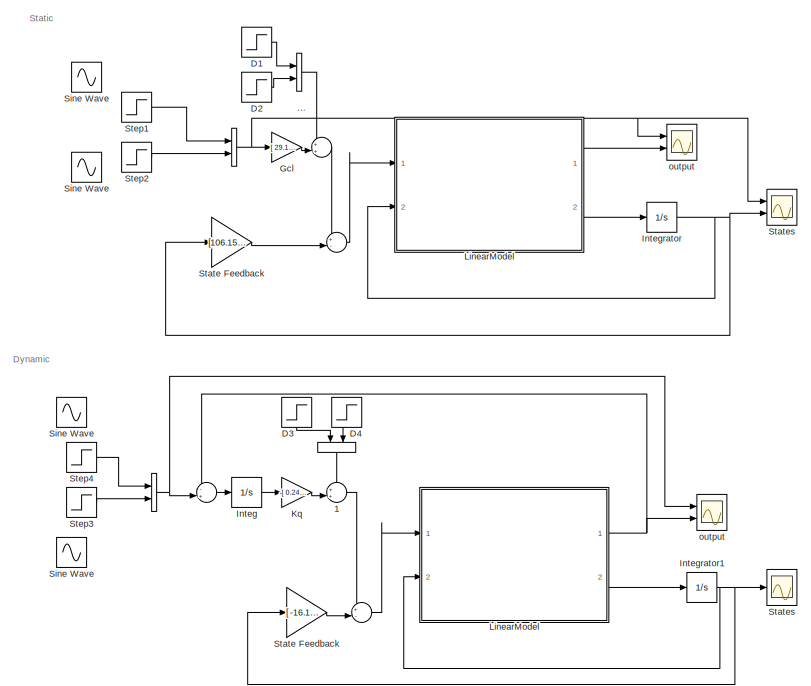
[diagram: root canvas - part 1/2, left side, full height]
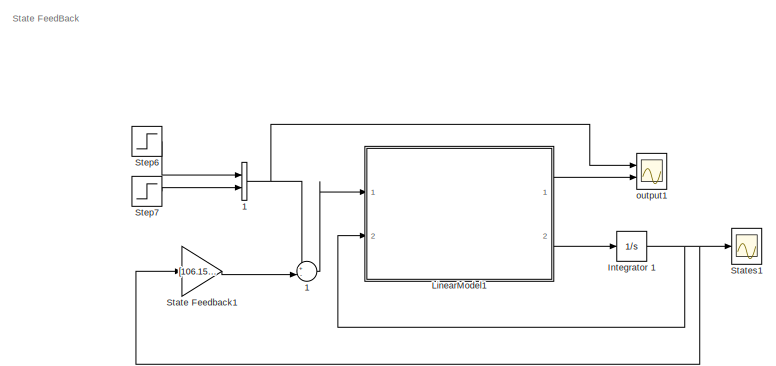
[diagram: root canvas - part 2/2, middle right region]
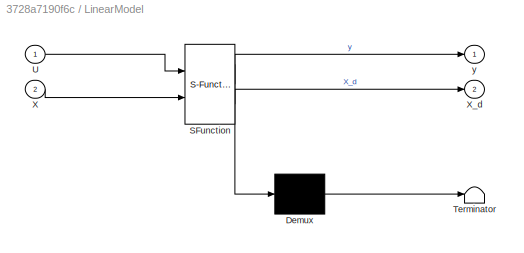
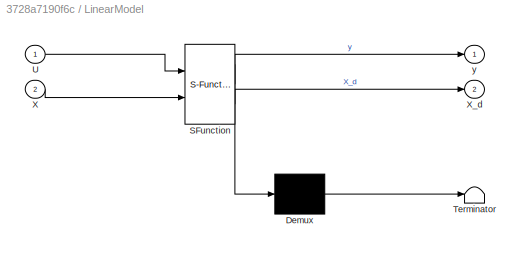
MODEL slx_3728a7190f6c
KIND model
CONFIG AbsTol = auto
CONFIG EnableMultiTasking = off
CONFIG FixedStep = auto
CONFIG MaxStep = auto
CONFIG MinStep = auto
CONFIG RelTol = 1e-3
CONFIG SampleTimeConstraint = Unconstrained
CONFIG Solver = VariableStepAuto
CONFIG SolverName = VariableStepAuto
CONFIG StartTime = 0.0
CONFIG StopTime = 500
BLOCK [Sum]  
  Inputs = +-|
  Ports = [2, 1]
BLOCK [Concatenate]    
  Ports = [2, 1]
BLOCK [Sum]      
  Inputs = ++|
  Ports = [2, 1]
BLOCK [Concatenate]        
  Ports = [2, 1]
BLOCK [Sum]         
  Inputs = -+|
  Ports = [2, 1]
BLOCK [Sum]          
  Inputs = +-|
  Ports = [2, 1]
BLOCK [Concatenate]                                   
  NameLocation = left
  Ports = [2, 1]
BLOCK [Concatenate]                                                                    
  Ports = [2, 1]
BLOCK [Sum]                   1
  Inputs = ++|
  Ports = [2, 1]
BLOCK [Concatenate]    1
  Ports = [2, 1]
BLOCK [Sum]  1
  Inputs = +-|
  Ports = [2, 1]
BLOCK [Step] D1
  After = 4
  SampleTime = 0
  Time = 250
BLOCK [Step] D2
  After = 4
  SampleTime = 0
  Time = 250
BLOCK [Step] D3
  After = 5
  NameLocation = left
  SampleTime = 0
  Time = 250
BLOCK [Step] D4
  After = 5
  NameLocation = left
  SampleTime = 0
  Time = 250
BLOCK [Gain] Gcl
  Gain = [  29.1,  231.0; 363.0, -162.0]
  Multiplication = Matrix(K*u)
BLOCK [Integrator] Integ
  Ports = [1, 1]
BLOCK [Integrator] Integrator  
  InitialCondition = [0;0;0;0;0;0]
  Ports = [1, 1]
BLOCK [Integrator] Integrator  1
  InitialCondition = [0;0;0;0;0;0]
  Ports = [1, 1]
BLOCK [Integrator] Integrator1
  InitialCondition = [0;0;0;0;0;0]
  Ports = [1, 1]
BLOCK [Gain] Kq
  Gain = -[ 0.248, -0.644; -1.44,  0.283]
  Multiplication = Matrix(K*u)
BLOCK [SubSystem] LinearModel
  ErrorFcn = Stateflow.Translate.translate
  PermitHierarchicalResolution = ExplicitOnly
  Ports = [2, 2]
  RequestExecContextInheritance = off
  SFBlockType = MATLAB Function
  TreatAsAtomicUnit = on
BLOCK [SubSystem] LinearModel 
  ErrorFcn = Stateflow.Translate.translate
  PermitHierarchicalResolution = ExplicitOnly
  Ports = [2, 2]
  RequestExecContextInheritance = off
  SFBlockType = MATLAB Function
  TreatAsAtomicUnit = on
BLOCK [Demux] LinearModel / Demux 
  Outputs = 1
  Ports = [1, 1]
BLOCK [S-Function] LinearModel / SFunction 
  EnableBusSupport = on
  FunctionName = sf_sfun
  PortCounts = [2 3]
  Ports = [2, 3]
  SFcnIsStateOwnerBlock = off
  SFunctionDeploymentMode = off
  Tag = Stateflow S-Function 1
BLOCK [Terminator] LinearModel / Terminator 
BLOCK [Inport] LinearModel /U
BLOCK [Inport] LinearModel /X
  Port = 2
BLOCK [Outport] LinearModel /X_d
  Port = 2
BLOCK [Outport] LinearModel /y
BLOCK [Demux] LinearModel/ Demux 
  Outputs = 1
  Ports = [1, 1]
BLOCK [S-Function] LinearModel/ SFunction 
  EnableBusSupport = on
  FunctionName = sf_sfun
  PortCounts = [2 3]
  Ports = [2, 3]
  SFcnIsStateOwnerBlock = off
  SFunctionDeploymentMode = off
  Tag = Stateflow S-Function 2
BLOCK [Terminator] LinearModel/ Terminator 
BLOCK [Inport] LinearModel/U
BLOCK [Inport] LinearModel/X
  Port = 2
BLOCK [Outport] LinearModel/X_d
  Port = 2
BLOCK [Outport] LinearModel/y
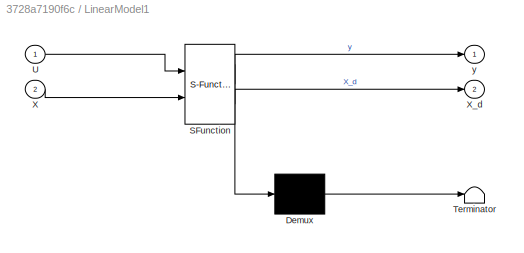
BLOCK [SubSystem] LinearModel1
  ErrorFcn = Stateflow.Translate.translate
  PermitHierarchicalResolution = ExplicitOnly
  Ports = [2, 2]
  RequestExecContextInheritance = off
  SFBlockType = MATLAB Function
  TreatAsAtomicUnit = on
BLOCK [Demux] LinearModel1/ Demux 
  Outputs = 1
  Ports = [1, 1]
BLOCK [S-Function] LinearModel1/ SFunction 
  EnableBusSupport = on
  FunctionName = sf_sfun
  PortCounts = [2 3]
  Ports = [2, 3]
  SFcnIsStateOwnerBlock = off
  SFunctionDeploymentMode = off
  Tag = Stateflow S-Function 3
BLOCK [Terminator] LinearModel1/ Terminator 
BLOCK [Inport] LinearModel1/U
BLOCK [Inport] LinearModel1/X
  Port = 2
BLOCK [Outport] LinearModel1/X_d
  Port = 2
BLOCK [Outport] LinearModel1/y
BLOCK [Sin] Sine Wave
  Ports = [0, 1]
  SampleTime = 0
BLOCK [Sin] Sine Wave 
  Ports = [0, 1]
  SampleTime = 0
BLOCK [Sin] Sine Wave  
  Ports = [0, 1]
  SampleTime = 0
BLOCK [Sin] Sine Wave   
  Ports = [0, 1]
  SampleTime = 0
BLOCK [Gain] State Feedback
  Gain = [106.15 -61.299 0.111 0.986 160.72 57.96; 169.55 189.92 1.35 0.106 -43.79 -62.97]
  Multiplication = Matrix(K*u)
BLOCK [Gain] State Feedback 
  Gain = [ -16.1, -14.8, -0.00412, -0.231,  27.5,  19.0;  55.9,  32.3,  -0.0575, 0.0176, -23.0, -22.8]
  Multiplication = Matrix(K*u)
BLOCK [Gain] State Feedback1
  Gain = [106.15 -61.299 0.111 0.986 160.72 57.96; 169.55 189.92 1.35 0.106 -43.79 -62.97]
  Multiplication = Matrix(K*u)
BLOCK [Scope] States
  Floating = off
  NumInputPorts = 2
  Ports = [2]
  ScopeSpecificationString = Simulink.scopes.TimeScopeBlockCfg('CurrentConfiguration', extmgr.ConfigurationSet(extmgr.Configuration('Core','General UI',true,'FigureColor',[1 1 1]),extmgr.Configuration('Core','Source UI',true),extmgr.Configuration('Sources','WiredSimulink',true,'DataLoggingVariableName','ScopeData2','DataLoggingSaveFormat','StructureWithTime','DataLoggingDecimation','1','DataLoggingDecimateData',true),extmgr.C...<+3336ch>
BLOCK [Scope] States 
  Floating = off
  NumInputPorts = 1
  Ports = [1]
  ScopeSpecificationString = Simulink.scopes.TimeScopeBlockCfg('CurrentConfiguration', extmgr.ConfigurationSet(extmgr.Configuration('Core','General UI',true,'FigureColor',[1 1 1]),extmgr.Configuration('Core','Source UI',true),extmgr.Configuration('Sources','WiredSimulink',true,'DataLoggingVariableName','ScopeData2','DataLoggingSaveFormat','StructureWithTime','DataLoggingDecimation','1','DataLoggingDecimateData',true),extmgr.C...<+3299ch>
BLOCK [Scope] States1
  Floating = off
  NumInputPorts = 1
  Ports = [1]
  ScopeSpecificationString = Simulink.scopes.TimeScopeBlockCfg('CurrentConfiguration', extmgr.ConfigurationSet(extmgr.Configuration('Core','General UI',true,'FigureColor',[1 1 1]),extmgr.Configuration('Core','Source UI',true),extmgr.Configuration('Sources','WiredSimulink',true,'DataLoggingVariableName','ScopeData1','DataLoggingSaveFormat','StructureWithTime','DataLoggingDecimation','1','DataLoggingDecimateData',true),extmgr.C...<+3276ch>
BLOCK [Step] Step1
  SampleTime = 0
BLOCK [Step] Step2
  SampleTime = 0
BLOCK [Step] Step3
  SampleTime = 0
BLOCK [Step] Step4
  SampleTime = 0
BLOCK [Step] Step6
  SampleTime = 0
BLOCK [Step] Step7
  SampleTime = 0
BLOCK [Scope] output
  Floating = off
  NumInputPorts = 2
  Ports = [2]
  ScopeSpecificationString = Simulink.scopes.TimeScopeBlockCfg('CurrentConfiguration', extmgr.ConfigurationSet(extmgr.Configuration('Core','General UI',true,'FigureColor',[1 1 1]),extmgr.Configuration('Core','Source UI',true),extmgr.Configuration('Sources','WiredSimulink',true,'DataLoggingVariableName','ScopeData1','DataLoggingSaveFormat','StructureWithTime','DataLoggingDecimation','1','DataLoggingDecimateData',true),extmgr.C...<+3259ch>
BLOCK [Scope] output 
  Floating = off
  NumInputPorts = 2
  Ports = [2]
  ScopeSpecificationString = Simulink.scopes.TimeScopeBlockCfg('CurrentConfiguration', extmgr.ConfigurationSet(extmgr.Configuration('Core','General UI',true,'FigureColor',[1 1 1]),extmgr.Configuration('Core','Source UI',true),extmgr.Configuration('Sources','WiredSimulink',true,'DataLoggingVariableName','ScopeData1','DataLoggingSaveFormat','StructureWithTime','DataLoggingDecimation','1','DataLoggingDecimateData',true),extmgr.C...<+3267ch>
BLOCK [Scope] output1
  Floating = off
  NumInputPorts = 2
  Ports = [2]
  ScopeSpecificationString = Simulink.scopes.TimeScopeBlockCfg('CurrentConfiguration', extmgr.ConfigurationSet(extmgr.Configuration('Core','General UI',true,'FigureColor',[1 1 1]),extmgr.Configuration('Core','Source UI',true),extmgr.Configuration('Sources','WiredSimulink',true,'DataLoggingVariableName','ScopeData2','DataLoggingSaveFormat','StructureWithTime','DataLoggingDecimation','1','DataLoggingDecimateData',true),extmgr.C...<+3225ch>
ANNOTATION (root): Dynamic
ANNOTATION (root): State FeedBack
ANNOTATION (root): Static
LINE                                                                    :1 ->      :1
LINE                                   :1 ->                   1:1
LINE                   1:1 ->          :1
LINE          :1 -> LinearModel :1
LINE         :1 -> Integ:1
NET        :1 ->         :2, output :1
LINE      :1 ->  :1
NET    1:1 ->  1:1, output1:1
NET    :1 -> Gcl:1, States:1, output:1
LINE  1:1 -> LinearModel1:1
LINE  :1 -> LinearModel:1
LINE D1:1 ->                                                                    :1
LINE D2:1 ->                                                                    :2
LINE D3:1 ->                                   :1
LINE D4:1 ->                                   :2
LINE Gcl:1 ->      :2
LINE Integ:1 -> Kq:1
NET Integrator  1:1 -> LinearModel1:2, State Feedback1:1, States1:1
NET Integrator  :1 -> LinearModel:2, State Feedback:1, States:2
NET Integrator1:1 -> LinearModel :2, State Feedback :1, States :1
LINE Kq:1 ->                   1:2
NET LinearModel :1 ->         :1, output :2
LINE LinearModel :2 -> Integrator1:1
LINE LinearModel1:1 -> output1:2
LINE LinearModel1:2 -> Integrator  1:1
LINE LinearModel:1 -> output:2
LINE LinearModel:2 -> Integrator  :1
LINE State Feedback :1 ->          :2
LINE State Feedback1:1 ->  1:2
LINE State Feedback:1 ->  :2
LINE Step1:1 ->    :1
LINE Step2:1 ->    :2
LINE Step3:1 ->        :2
LINE Step4:1 ->        :1
LINE Step6:1 ->    1:1
LINE Step7:1 ->    1:2
note: NET lines group one-source signal fan-out (src -> all destinations, sorted); 1:1 wires keep LINE
CHART LinearModel  states=1 transitions=1
  STATE_LABEL 'eML_blk_kernel()'
  STATE_LABEL 'SCRIPT:\nfunction [y,X_d]  = linear_plant(U,X)\nA = [ -0.0189,  0.029,      0, 0.00306,       0,       0;\n       0, -0.029, 0.0065,       0,       0,       0;\n       0,      0, -0.476,       0,       0,       0;\n       0,      0,      0,    -0.5,       0,       0;\n       0,      0, 0.0035,       0, -0.0191,  0.0349;\n       0,      0,      0, 0.00714,       0, -0.0349];\n\nB =[0,     0;\n   0,     0;\n  ...<+135ch>'  <repeated x3 — deduplicated; at blocks: LinearModel, LinearModel1>
CHART LinearModel states=1 transitions=1
  STATE_LABEL 'eML_blk_kernel()'
CHART LinearModel1 states=1 transitions=1
  STATE_LABEL 'eML_blk_kernel()'
CHART  states=0 transitions=0
CHART  states=0 transitions=0
CHART  states=0 transitions=0
